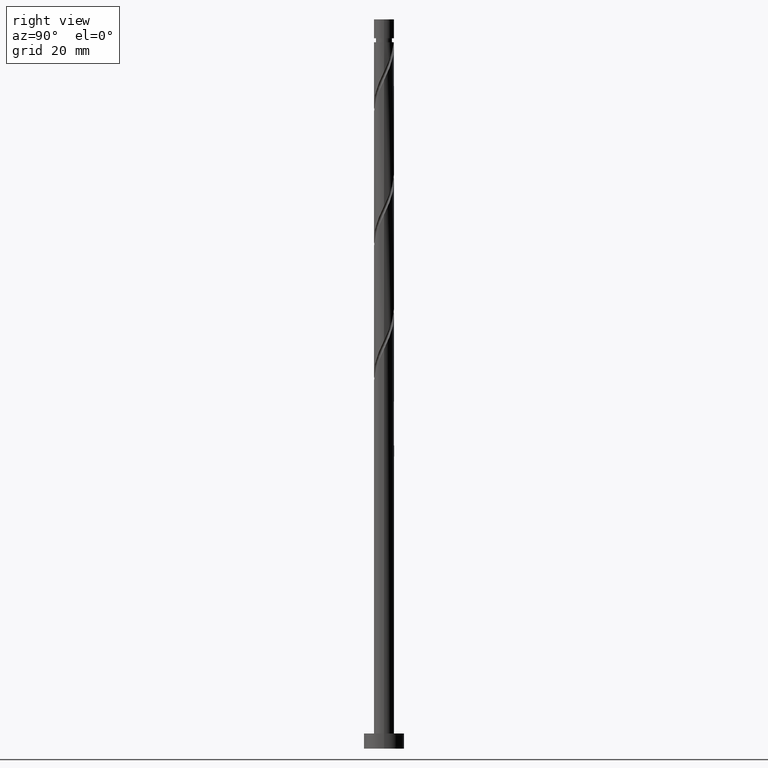
[diagram: clean part render]
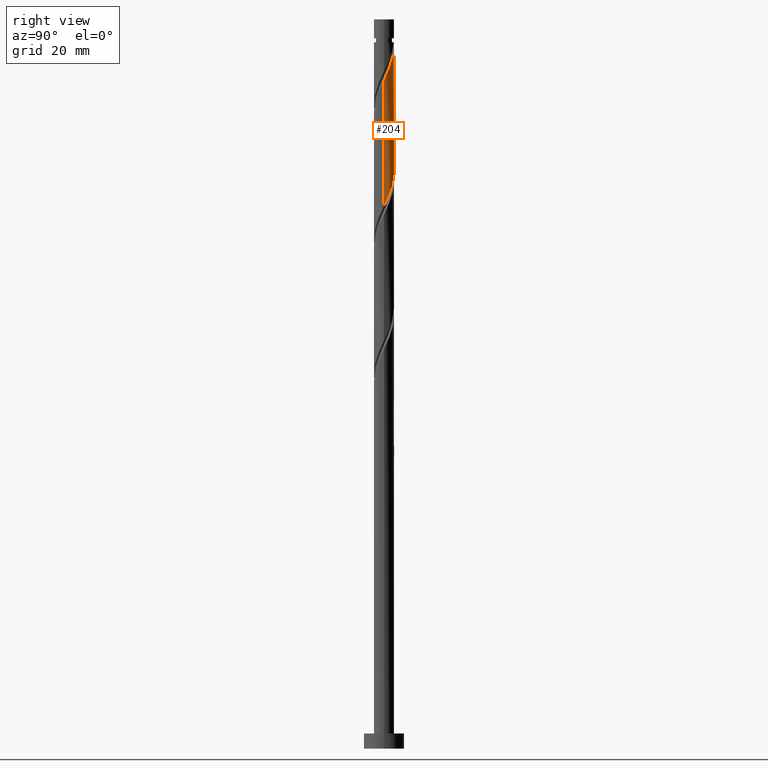
[diagram: same view with one face highlighted and labeled with its STEP entity id]
A machine part, right view. The second image highlights one B-rep face of the part: STEP entity #204.
In plain terms, the highlighted cylindrical surface (edge-blend (fillet) strip) has radius 2 mm, axis along (-0, -0, -1).
Its self-contained STEP definition (entity closure, byte-faithful):
#73 = CARTESIAN_POINT ( 'NONE',  ( -1.999999999999999112, 0.05755105304764485813, 120.7955276119063370 ) ) ;
#81 = CARTESIAN_POINT ( 'NONE',  ( 1.948211798543799889, 0.4521844623765067239, 108.5530196221721440 ) ) ;
#100 = CARTESIAN_POINT ( 'NONE',  ( 1.980155124014553847, 0.4020876473299552778, 133.4015044706570450 ) ) ;
#160 = CARTESIAN_POINT ( 'NONE',  ( -0.1161895186124974333, 2.017223038501450461, 139.4621105312630220 ) ) ;
#200 = CARTESIAN_POINT ( 'NONE',  ( -1.999999999999999556, -6.431432902503466190E-16, 120.9176256166245764 ) ) ;
#204 = ADVANCED_FACE ( 'NONE', ( #741 ), #1028, .T. ) ;
#210 = CARTESIAN_POINT ( 'NONE',  ( 1.741900447066337954, 0.9827425057002933118, 109.7651408342933763 ) ) ;
#218 = CARTESIAN_POINT ( 'NONE',  ( 1.448427499289744791, 1.408810338760220882, 135.8257468948994529 ) ) ;
#219 = LINE ( 'NONE', #626, #899 ) ;
#232 = CARTESIAN_POINT ( 'NONE',  ( 0.3979949748426487854, 1.959999999999999520, 113.4015044706570166 ) ) ;
#239 = CARTESIAN_POINT ( 'NONE',  ( 0.9928482695149684067, 1.759812803970230322, 137.0378681070206426 ) ) ;
#318 =( BOUNDED_CURVE ( )  B_SPLINE_CURVE ( 2, ( #200, #73, #722, #341, #1244, #1141, #732, #1509, #1379, #361, #881, #1261, #1252, #750, #232, #1386, #1361, #1103, #1123, #455, #210, #976, #81, #1271, #743 ),
 .UNSPECIFIED., .F., .T. ) 
 B_SPLINE_CURVE_WITH_KNOTS ( ( 3, 2, 2, 2, 2, 2, 2, 2, 2, 2, 2, 2, 3 ),
 ( 0.4295252162417513286, 0.4318181818181818232, 0.4431818181818181768, 0.4545454545454545303, 0.4659090909090908839, 0.4772727272727272929, 0.4886363636363636465, 0.5000000000000000000, 0.5113636363636363535, 0.5227272727272727071, 0.5340909090909090606, 0.5454545454545454142, 0.5545252162417511066 ),
 .UNSPECIFIED. ) 
 CURVE ( )  GEOMETRIC_REPRESENTATION_ITEM ( )  RATIONAL_B_SPLINE_CURVE ( ( 0.9061101570135593475, 0.9072237824201414558, 0.9090909090909189416, 0.8998376744372211800, 0.9090909090909189416, 0.8998376744372211800, 0.9090909090909189416, 0.8998376744372211800, 0.9090909090909189416, 0.8998376744372211800, 0.9090909090909189416, 0.8998376744372211800, 0.9090909090909189416, 0.8998376744372211800, 0.9090909090909189416, 0.8998376744372211800, 0.9090909090909189416, 0.8998376744372211800, 0.9090909090909189416, 0.8998376744372211800, 0.9090909090909189416, 0.8998376744372211800, 0.9090909090909189416, 0.9017048011079988878, 0.9061101570135590144 ) ) 
 REPRESENTATION_ITEM ( '' )  );
#341 = CARTESIAN_POINT ( 'NONE',  ( -1.980155124014550738, 0.4020876473299554443, 120.0681711373237022 ) ) ;
#361 = CARTESIAN_POINT ( 'NONE',  ( -0.9928482695149670745, 1.759812803970227879, 116.4318075009600761 ) ) ;
#387 = EDGE_CURVE ( 'NONE', #1243, #980, #1299, .T. ) ;
#414 = DIRECTION ( 'NONE',  ( -0.000000000000000000, -0.000000000000000000, -1.000000000000000000 ) ) ;
#455 = CARTESIAN_POINT ( 'NONE',  ( 1.600603406160404418, 1.233189980288573073, 110.3712014403540138 ) ) ;
#481 = EDGE_CURVE ( 'NONE', #960, #1092, #1432, .T. ) ;
#521 = CARTESIAN_POINT ( 'NONE',  ( -0.3979949748426579448, 1.960000000000002185, 140.0681711373237306 ) ) ;
#614 = CARTESIAN_POINT ( 'NONE',  ( 1.617545623245914888, 1.176242388590887922, 135.2196862888388864 ) ) ;
#625 = CARTESIAN_POINT ( 'NONE',  ( 0.000000000000000000, 0.000000000000000000, 144.5999999999999943 ) ) ;
#626 = CARTESIAN_POINT ( 'NONE',  ( 2.000000000000000000, 2.449293598294706414E-16, 144.5999999999999943 ) ) ;
#673 = CARTESIAN_POINT ( 'NONE',  ( -0.3979949748426579448, 1.960000000000002185, 140.0681711373237306 ) ) ;
#711 = ORIENTED_EDGE ( 'NONE', *, *, #924, .T. ) ;
#722 = CARTESIAN_POINT ( 'NONE',  ( -1.996690616564938958, 0.1150068768444773154, 120.6742317433842686 ) ) ;
#732 = CARTESIAN_POINT ( 'NONE',  ( -1.617545623245911113, 1.176242388590886589, 118.2499893191418607 ) ) ;
#741 = FACE_OUTER_BOUND ( 'NONE', #1226, .T. ) ;
#743 = CARTESIAN_POINT ( 'NONE',  ( 1.999999999999999556, 3.036234602809776601E-15, 107.5842922832912905 ) ) ;
#750 = CARTESIAN_POINT ( 'NONE',  ( 0.1161895186125007917, 2.017223038501447352, 114.0075650767176256 ) ) ;
#833 = ORIENTED_EDGE ( 'NONE', *, *, #1018, .T. ) ;
#856 = CARTESIAN_POINT ( 'NONE',  ( 1.996690616564942955, 0.1150068768444766631, 132.7954438645964217 ) ) ;
#862 = CARTESIAN_POINT ( 'NONE',  ( 1.999999999999999556, 3.036234602809776206E-15, 107.5842922832912905 ) ) ;
#881 = CARTESIAN_POINT ( 'NONE',  ( -0.7248413235775359453, 1.864029252891264754, 115.8257468948994244 ) ) ;
#899 = VECTOR ( 'NONE', #1111, 1000.000000000000000 ) ;
#924 = EDGE_CURVE ( 'NONE', #1243, #1129, #219, .T. ) ;
#938 = EDGE_CURVE ( 'NONE', #1092, #1129, #318, .T. ) ;
#960 = VERTEX_POINT ( 'NONE', #1353 ) ;
#966 = CARTESIAN_POINT ( 'NONE',  ( -1.999999999999999556, -6.431432902503466190E-16, 120.9176256166245764 ) ) ;
#970 = VECTOR ( 'NONE', #1326, 1000.000000000000000 ) ;
#976 = CARTESIAN_POINT ( 'NONE',  ( 1.883197487972272155, 0.7322950311120126621, 109.1590802282327672 ) ) ;
#980 = VERTEX_POINT ( 'NONE', #521 ) ;
#1018 = EDGE_CURVE ( 'NONE', #960, #980, #1480, .T. ) ;
#1020 = CARTESIAN_POINT ( 'NONE',  ( 0.4568343776401064815, 1.968245701812304516, 138.2499893191418039 ) ) ;
#1028 = CYLINDRICAL_SURFACE ( 'NONE', #1515, 2.000000000000000000 ) ;
#1092 = VERTEX_POINT ( 'NONE', #966 ) ;
#1102 = ORIENTED_EDGE ( 'NONE', *, *, #387, .F. ) ;
#1103 = CARTESIAN_POINT ( 'NONE',  ( 1.188337955536407531, 1.634179211325357928, 111.5833226524752178 ) ) ;
#1110 = CARTESIAN_POINT ( 'NONE',  ( 1.220637884402356210, 1.584311571365226490, 136.4318075009600477 ) ) ;
#1111 = DIRECTION ( 'NONE',  ( -0.000000000000000000, -0.000000000000000000, -1.000000000000000000 ) ) ;
#1123 = CARTESIAN_POINT ( 'NONE',  ( 1.394470680848405975, 1.433684595806965278, 110.9772620464146087 ) ) ;
#1129 = VERTEX_POINT ( 'NONE', #862 ) ;
#1141 = CARTESIAN_POINT ( 'NONE',  ( -1.786663747202081876, 0.9436744384215539627, 118.8560499252025124 ) ) ;
#1147 = DIRECTION ( 'NONE',  ( -0.000000000000000000, -0.000000000000000000, -1.000000000000000000 ) ) ;
#1204 = CARTESIAN_POINT ( 'NONE',  ( -2.000000000000000000, 0.000000000000000000, 144.5999999999999943 ) ) ;
#1226 = EDGE_LOOP ( 'NONE', ( #1102, #711, #1229, #1276, #833 ) ) ;
#1229 = ORIENTED_EDGE ( 'NONE', *, *, #938, .F. ) ;
#1243 = VERTEX_POINT ( 'NONE', #1406 ) ;
#1244 = CARTESIAN_POINT ( 'NONE',  ( -1.883409435608315752, 0.6728810428757545647, 119.4621105312631073 ) ) ;
#1252 = CARTESIAN_POINT ( 'NONE',  ( -0.1703224295138022204, 1.992734370156873824, 114.6136256827782631 ) ) ;
#1261 = CARTESIAN_POINT ( 'NONE',  ( -0.4568343776401053158, 1.968245701812300963, 115.2196862888388580 ) ) ;
#1271 = CARTESIAN_POINT ( 'NONE',  ( 1.999999999999998224, 0.2290578547702492307, 108.0702522362625473 ) ) ;
#1276 = ORIENTED_EDGE ( 'NONE', *, *, #481, .F. ) ;
#1280 = CARTESIAN_POINT ( 'NONE',  ( 2.000000000000003553, 1.450811608239142856E-15, 132.5520499913561707 ) ) ;
#1299 =( BOUNDED_CURVE ( )  B_SPLINE_CURVE ( 2, ( #1280, #1636, #856, #100, #1627, #1377, #614, #218, #1110, #239, #1619, #1020, #1526, #160, #673 ),
 .UNSPECIFIED., .F., .T. ) 
 B_SPLINE_CURVE_WITH_KNOTS ( ( 3, 2, 2, 2, 2, 2, 2, 3 ),
 ( 0.6795252162417513286, 0.6818181818181818787, 0.6931818181818181213, 0.7045454545454545858, 0.7159090909090908283, 0.7272727272727271819, 0.7386363636363635354, 0.7499999999999998890 ),
 .UNSPECIFIED. ) 
 CURVE ( )  GEOMETRIC_REPRESENTATION_ITEM ( )  RATIONAL_B_SPLINE_CURVE ( ( 0.9061101570135661198, 0.9072237824201483392, 0.9090909090909258250, 0.8998376744372282854, 0.9090909090909258250, 0.8998376744372282854, 0.9090909090909258250, 0.8998376744372282854, 0.9090909090909258250, 0.8998376744372282854, 0.9090909090909258250, 0.8998376744372282854, 0.9090909090909258250, 0.8998376744372283964, 0.9090909090909257140 ) ) 
 REPRESENTATION_ITEM ( '' )  );
#1325 = CARTESIAN_POINT ( 'NONE',  ( 0.000000000000000000, 0.000000000000000000, 140.0681711373237022 ) ) ;
#1326 = DIRECTION ( 'NONE',  ( -0.000000000000000000, -0.000000000000000000, -1.000000000000000000 ) ) ;
#1346 = AXIS2_PLACEMENT_3D ( 'NONE', #1325, #414, #1455 ) ;
#1353 = CARTESIAN_POINT ( 'NONE',  ( -1.999999999999994893, 0.000000000000000000, 140.0681711373237022 ) ) ;
#1361 = CARTESIAN_POINT ( 'NONE',  ( 0.9340691933046018081, 1.768478086411954475, 112.1893832585358126 ) ) ;
#1368 = DIRECTION ( 'NONE',  ( -1.000000000000000000, 0.000000000000000000, 0.000000000000000000 ) ) ;
#1377 = CARTESIAN_POINT ( 'NONE',  ( 1.786663747202085428, 0.9436744384215547399, 134.6136256827782347 ) ) ;
#1379 = CARTESIAN_POINT ( 'NONE',  ( -1.220637884402353768, 1.584311571365223825, 117.0378681070206568 ) ) ;
#1386 = CARTESIAN_POINT ( 'NONE',  ( 0.6798004310727964183, 1.902776961498551023, 112.7954438645964359 ) ) ;
#1406 = CARTESIAN_POINT ( 'NONE',  ( 2.000000000000003553, 1.450811608239142856E-15, 132.5520499913561707 ) ) ;
#1432 = LINE ( 'NONE', #1204, #970 ) ;
#1455 = DIRECTION ( 'NONE',  ( -1.000000000000000000, 0.000000000000000000, 0.000000000000000000 ) ) ;
#1480 = CIRCLE ( 'NONE', #1346, 1.999999999999994893 ) ;
#1509 = CARTESIAN_POINT ( 'NONE',  ( -1.448427499289741238, 1.408810338760219993, 117.6439287130812659 ) ) ;
#1515 = AXIS2_PLACEMENT_3D ( 'NONE', #625, #1147, #1368 ) ;
#1526 = CARTESIAN_POINT ( 'NONE',  ( 0.1703224295138031086, 1.992734370156877821, 138.8560499252025124 ) ) ;
#1619 = CARTESIAN_POINT ( 'NONE',  ( 0.7248413235775370556, 1.864029252891267419, 137.6439287130812659 ) ) ;
#1627 = CARTESIAN_POINT ( 'NONE',  ( 1.883409435608319527, 0.6728810428757548978, 134.0075650767176398 ) ) ;
#1636 = CARTESIAN_POINT ( 'NONE',  ( 2.000000000000003553, 0.05755105304764338015, 132.6741479960743959 ) ) ;